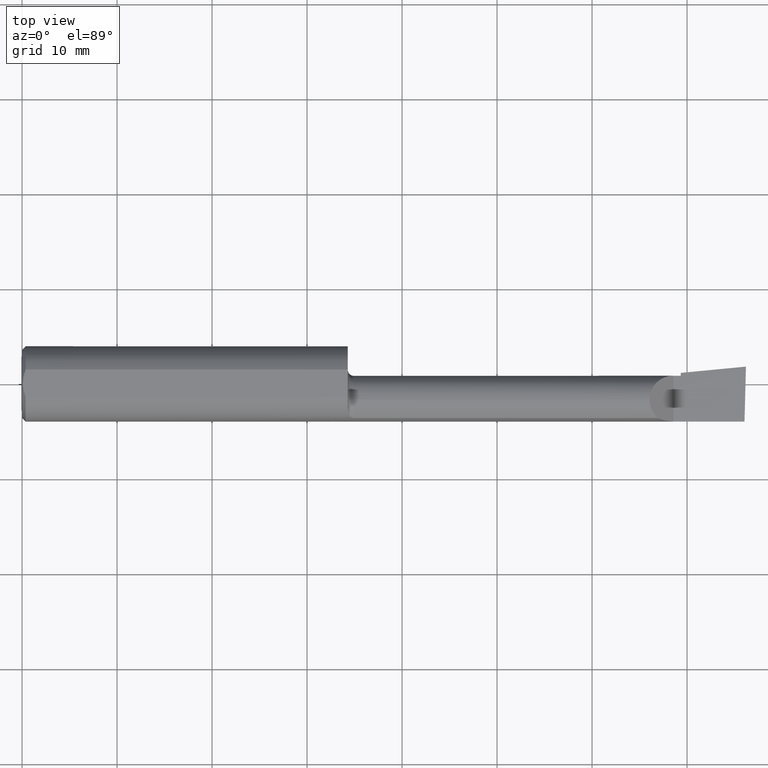
[diagram: clean part render]
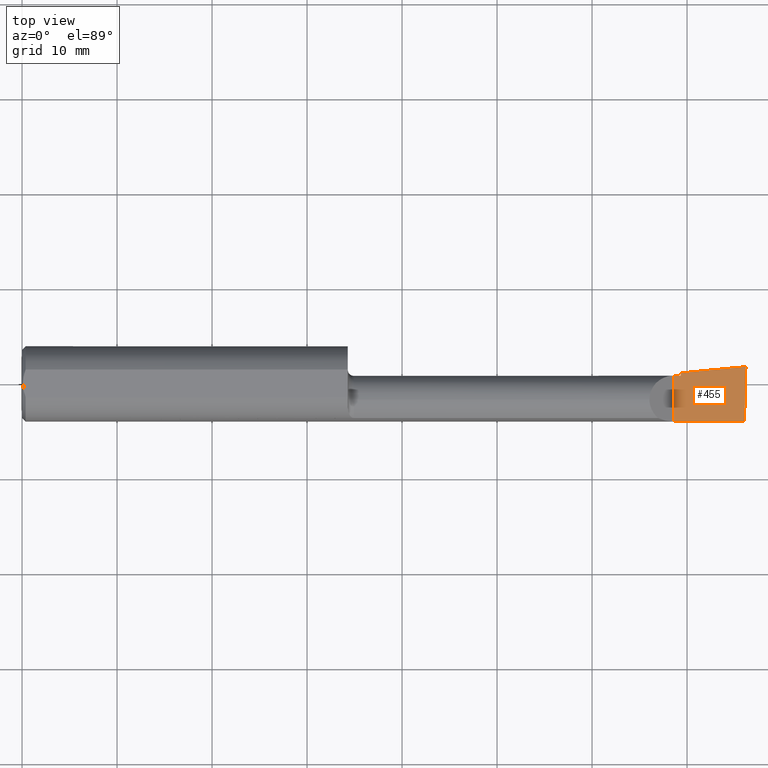
[diagram: same view with one face highlighted and labeled with its STEP entity id]
A machine part, top view. The second image highlights one B-rep face of the part: STEP entity #455.
In plain terms, the highlighted planar face has unit normal (-0, 0, -1).
Its self-contained STEP definition (entity closure, byte-faithful):
#6 = CARTESIAN_POINT ( 'NONE',  ( 2.994029609882220999, -0.1561000000000000165, -6.741913824051284207E-17 ) ) ;
#13 = CARTESIAN_POINT ( 'NONE',  ( 2.999999999999988010, 0.07190000000001794955, 6.195639166568494017E-14 ) ) ;
#17 = VERTEX_POINT ( 'NONE', #6 ) ;
#24 = VERTEX_POINT ( 'NONE', #13 ) ;
#25 = LINE ( 'NONE', #365, #404 ) ;
#37 = CARTESIAN_POINT ( 'NONE',  ( 2.700000000000000178, -0.1560999999999999888, -2.449293598294708386E-17 ) ) ;
#63 = EDGE_CURVE ( 'NONE', #17, #284, #196, .T. ) ;
#65 = VECTOR ( 'NONE', #354, 39.37007874015748143 ) ;
#103 = EDGE_LOOP ( 'NONE', ( #123, #221, #412, #171, #333, #130 ) ) ;
#123 = ORIENTED_EDGE ( 'NONE', *, *, #63, .F. ) ;
#129 = DIRECTION ( 'NONE',  ( -1.000000000000000000, 0.0000000000000000000, 1.460108795288649722E-16 ) ) ;
#130 = ORIENTED_EDGE ( 'NONE', *, *, #242, .F. ) ;
#170 = DIRECTION ( 'NONE',  ( -0.0000000000000000000, 1.000000000000000000, -0.0000000000000000000 ) ) ;
#171 = ORIENTED_EDGE ( 'NONE', *, *, #283, .F. ) ;
#172 = VECTOR ( 'NONE', #472, 39.37007874015748854 ) ;
#182 = CARTESIAN_POINT ( 'NONE',  ( 3.000000000000000444, -0.2500000000000000555, -6.829619984160658046E-17 ) ) ;
#196 = LINE ( 'NONE', #416, #65 ) ;
#203 = LINE ( 'NONE', #655, #514 ) ;
#206 = AXIS2_PLACEMENT_3D ( 'NONE', #182, #570, #129 ) ;
#221 = ORIENTED_EDGE ( 'NONE', *, *, #225, .T. ) ;
#225 = EDGE_CURVE ( 'NONE', #17, #24, #681, .T. ) ;
#227 = VERTEX_POINT ( 'NONE', #476 ) ;
#233 = CARTESIAN_POINT ( 'NONE',  ( 2.700000000000000178, -0.2500000000000000555, -2.449293598294708386E-17 ) ) ;
#242 = EDGE_CURVE ( 'NONE', #284, #518, #292, .T. ) ;
#283 = EDGE_CURVE ( 'NONE', #447, #227, #25, .T. ) ;
#284 = VERTEX_POINT ( 'NONE', #37 ) ;
#292 = LINE ( 'NONE', #233, #451 ) ;
#329 = EDGE_CURVE ( 'NONE', #227, #24, #203, .T. ) ;
#333 = ORIENTED_EDGE ( 'NONE', *, *, #613, .F. ) ;
#349 = FACE_OUTER_BOUND ( 'NONE', #103, .T. ) ;
#354 = DIRECTION ( 'NONE',  ( -1.000000000000000000, -0.0000000000000000000, -0.0000000000000000000 ) ) ;
#365 = CARTESIAN_POINT ( 'NONE',  ( 2.729999999999999982, -0.2500000000000000555, -2.887326236881301627E-17 ) ) ;
#366 = CARTESIAN_POINT ( 'NONE',  ( 5.398554261502604010E-32, 0.03389999999999997876, 3.697364387449882376E-16 ) ) ;
#380 = PLANE ( 'NONE',  #206 ) ;
#401 = VECTOR ( 'NONE', #579, 39.37007874015748143 ) ;
#404 = VECTOR ( 'NONE', #692, 39.37007874015748143 ) ;
#412 = ORIENTED_EDGE ( 'NONE', *, *, #329, .F. ) ;
#416 = CARTESIAN_POINT ( 'NONE',  ( 5.398554261502604010E-32, -0.1560999999999999333, 3.697364387449882376E-16 ) ) ;
#442 = CARTESIAN_POINT ( 'NONE',  ( 2.991576527842700450, -0.2497794236187493300, -6.706628126323233036E-17 ) ) ;
#447 = VERTEX_POINT ( 'NONE', #671 ) ;
#451 = VECTOR ( 'NONE', #170, 39.37007874015748143 ) ;
#455 = ADVANCED_FACE ( 'NONE', ( #349 ), #380, .F. ) ;
#472 = DIRECTION ( 'NONE',  ( 0.02617694830780482526, 0.9996573249755590362, -3.765352607662714918E-18 ) ) ;
#476 = CARTESIAN_POINT ( 'NONE',  ( 2.729999999999999982, 0.04590195698666847679, 3.734948428837860038E-16 ) ) ;
#514 = VECTOR ( 'NONE', #590, 39.37007874015748143 ) ;
#518 = VERTEX_POINT ( 'NONE', #552 ) ;
#552 = CARTESIAN_POINT ( 'NONE',  ( 2.700000000000000178, 0.03389999999999990937, -2.449293598294708386E-17 ) ) ;
#570 = DIRECTION ( 'NONE',  ( -1.460108795288649722E-16, 0.0000000000000000000, -1.000000000000000000 ) ) ;
#579 = DIRECTION ( 'NONE',  ( 1.000000000000000000, 0.0000000000000000000, 0.0000000000000000000 ) ) ;
#590 = DIRECTION ( 'NONE',  ( 0.9953961983671787417, 0.09584575252022466130, -1.453386744032802967E-16 ) ) ;
#613 = EDGE_CURVE ( 'NONE', #518, #447, #700, .T. ) ;
#655 = CARTESIAN_POINT ( 'NONE',  ( 1.567853742648958271, -0.06599999999999998923, 1.408127348081912221E-16 ) ) ;
#671 = CARTESIAN_POINT ( 'NONE',  ( 2.729999999999999982, 0.03390000000000008284, 3.697364387449886320E-16 ) ) ;
#681 = LINE ( 'NONE', #442, #172 ) ;
#692 = DIRECTION ( 'NONE',  ( 0.0000000000000000000, 1.000000000000000000, 0.0000000000000000000 ) ) ;
#700 = LINE ( 'NONE', #366, #401 ) ;